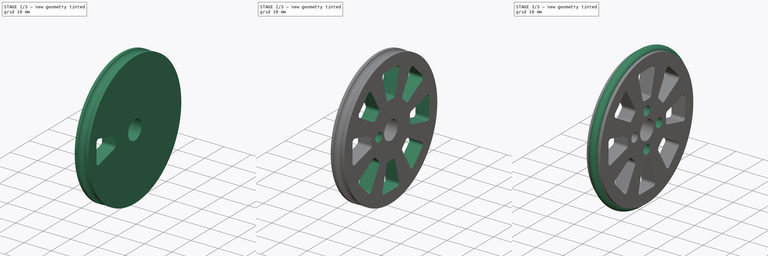
[diagram: build sequence overview — one tinted view per stage of 3, left to right]
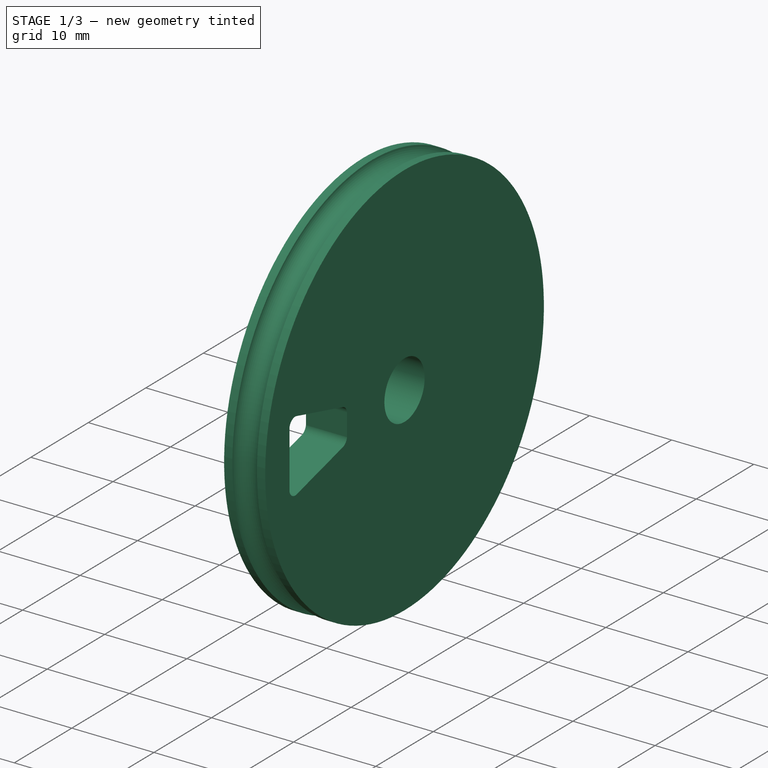
[diagram: stage 1 of 3 — iso view after this stage's code; geometry added in this stage tinted green]
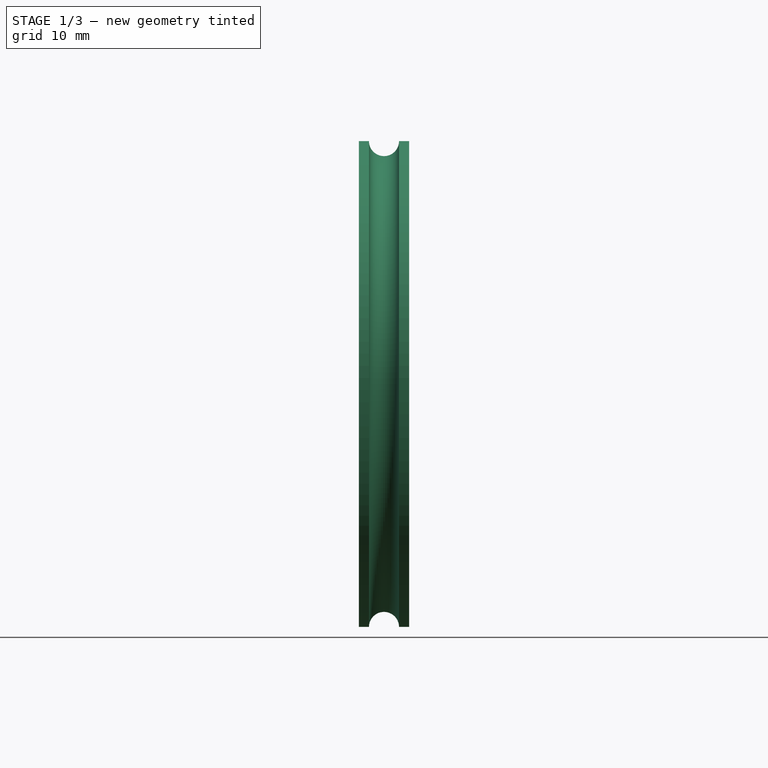
[diagram: stage 1 of 3 — front view after this stage's code; geometry added in this stage tinted green]
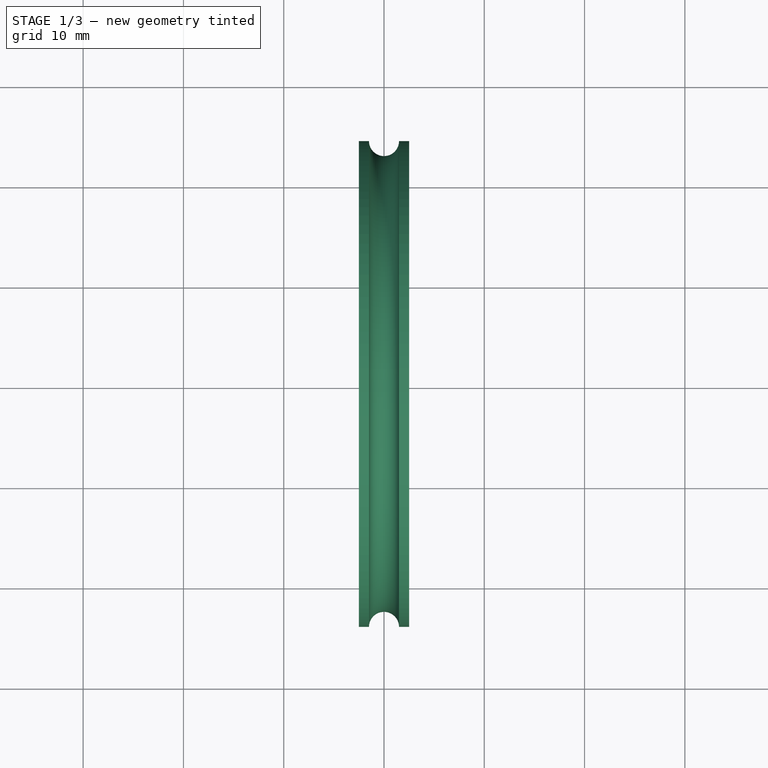
[diagram: stage 1 of 3 — top view after this stage's code; geometry added in this stage tinted green]
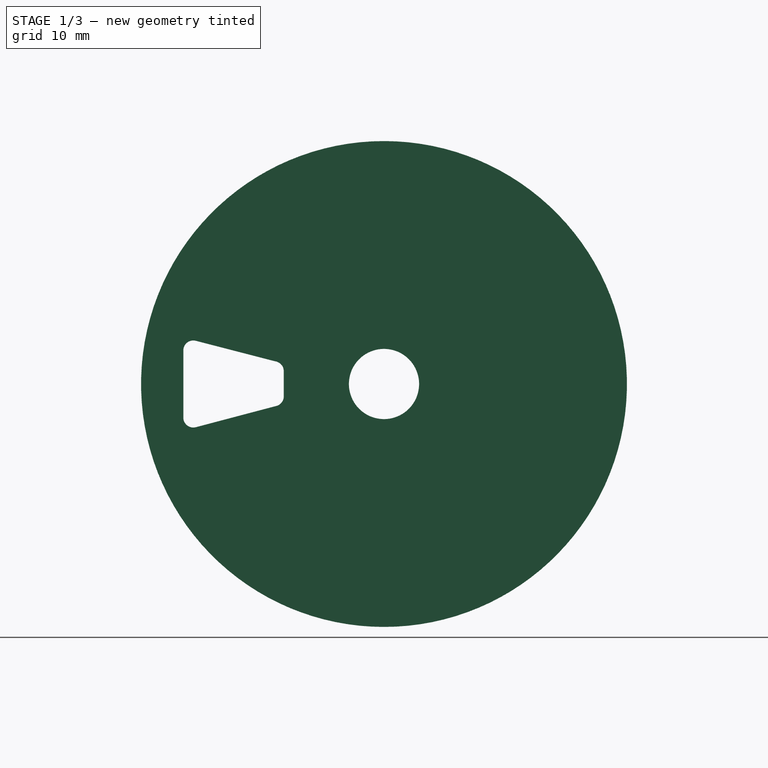
[diagram: stage 1 of 3 — right view after this stage's code; geometry added in this stage tinted green]
FCSTD DOCUMENT  (FreeCAD 0.19R24291 (Git))
Label: Roue_codeuse
License: All rights reserved
LicenseURL: http://en.wikipedia.org/wiki/All_rights_reserved
objects: Sketcher::SketchObject×4, PartDesign::Revolution×2, PartDesign::Body×2, PartDesign::Pocket×2, PartDesign::PolarPattern×2
note: 16 computed .brp shape members not serialized (recipe doc carries the construction recipe); baked Part::Feature solids carry a one-line shape summary decoded from their .brp

FEATURE [Sketcher::SketchObject] Sketch  label="base_roue"
  FullyConstrained = true
  MapMode = 5
  Placement = pos=(0,0,0) rot=(1,0,0;1.5708rad)
  Support = -> [XZ_Plane]
  sketch-geometry (8):
    g0: LineSegment StartX=-2.5 StartY=3.5 StartZ=0 EndX=-2.5 EndY=24.225 EndZ=0
    g1: LineSegment StartX=2.5 StartY=24.225 StartZ=0 EndX=2.5 EndY=3.5 EndZ=0
    g2: LineSegment StartX=2.5 StartY=3.5 StartZ=0 EndX=-2.5 EndY=3.5 EndZ=0
    g3: LineSegment StartX=-2.5 StartY=24.225 StartZ=0 EndX=-1.5 EndY=24.225 EndZ=0
    g4: LineSegment StartX=2.5 StartY=24.225 StartZ=0 EndX=1.5 EndY=24.225 EndZ=0
    g5: ArcOfCircle CenterX=0 CenterY=24.225 CenterZ=0 NormalX=0 NormalY=0 NormalZ=1 AngleXU=0 Radius=1.5 StartAngle=3.14159 EndAngle=6.28319
    g6: LineSegment StartX=-1.5 StartY=24.225 StartZ=0 EndX=1.5 EndY=24.225 EndZ=0
    g7: GeomPoint X=0 Y=3.5 Z=0
  constraints (21):
    c: Vertical(g0)
    c: Vertical(g1)
    c: Coincident(g1,g2)
    c: Coincident(g2,g0)
    c: Horizontal(g2)
    c: DistanceY(g-1,g1) = 24.225
    c: DistanceY(g-1,g1) = 3.5
    c: DistanceX(g0,g1) = 5
    c: Coincident(g3,g0)
    c: Horizontal(g3)
    c: Coincident(g4,g1)
    c: Coincident(g5,g3)
    c: Coincident(g5,g4)
    c: Radius(g5) = 1.5
    c: Equal(g3,g4)
    c: Tangent(g4,g3)
    c: Coincident(g6,g3)
    c: Coincident(g6,g4)
    c: DistanceX(g6,g6) = 3
    c: Symmetric(g1,g0,g7)
    c: Vertical(g7,g-1)
FEATURE [PartDesign::Revolution] Revolution  label="base_roue001"
  Angle = 360
  Axis = (1,0,0)
  Base = (0,0,0)
  Placement = pos=(0,0,0) rot=(1,0,0;1.5708rad)
  Profile = -> Sketch
  ReferenceAxis = -> Sketch [H_Axis]
FEATURE [PartDesign::Body] Body001  label="Joint"
  Group = -> [Sketch001,Revolution001]
  Origin = -> Origin001
  Tip = -> Revolution001
FEATURE [Sketcher::SketchObject] Sketch002
  FullyConstrained = false
  MapMode = 5
  Placement = pos=(-2.5,0,0) rot=(0.707107,0,-0.707107;3.14159rad)
  Support = -> [Revolution]
  sketch-geometry (9):
    g0: ArcOfCircle CenterX=-3.3399 CenterY=19.0129 CenterZ=0 NormalX=0 NormalY=0 NormalZ=1 AngleXU=0 Radius=1 StartAngle=1.73159 EndAngle=3.42772
    g1: LineSegment StartX=-2.26347 StartY=10.8596 StartZ=0 EndX=-4.29924 EndY=18.7307 EndZ=0
    g2: ArcOfCircle CenterX=3.3399 CenterY=19.0129 CenterZ=0 NormalX=0 NormalY=0 NormalZ=1 AngleXU=0 Radius=1 StartAngle=5.99706 EndAngle=7.69319
    g3: LineSegment StartX=-3.5 StartY=20 StartZ=0 EndX=3.5 EndY=20 EndZ=0
    g4: ArcOfCircle CenterX=-1.27278 CenterY=10.9957 CenterZ=0 NormalX=0 NormalY=0 NormalZ=1 AngleXU=0 Radius=1 StartAngle=3.27818 EndAngle=4.61985
    g5: ArcOfCircle CenterX=1.22211 CenterY=10.9897 CenterZ=0 NormalX=0 NormalY=0 NormalZ=1 AngleXU=0 Radius=1 StartAngle=4.85596 EndAngle=6.06836
    g6: LineSegment StartX=-1.36519 StartY=10 StartZ=0 EndX=1.36519 EndY=10 EndZ=0
    g7: LineSegment StartX=2.19912 StartY=10.7765 StartZ=0 EndX=4.29924 EndY=18.7307 EndZ=0
    g8: LineSegment StartX=-4.29924 StartY=18.7307 StartZ=0 EndX=4.29924 EndY=18.7307 EndZ=0
  constraints (22):
    c: Radius(g0) = 1
    c: Coincident(g1,g0)
    c: Radius(g2) = 1
    c: Coincident(g3,g0)
    c: Coincident(g3,g2)
    c: Coincident(g4,g1)
    c: Radius(g4) = 1
    c: Radius(g5) = 1
    c: Coincident(g6,g4)
    c: Coincident(g6,g5)
    c: Coincident(g7,g5)
    c: Coincident(g7,g2)
    c: Symmetric(g0,g2,g-2)
    c: Symmetric(g5,g4,g-2)
    c: DistanceY(g5,g2) = 10
    c: DistanceY(g-1,g5) = 10
    c: DistanceX(g0,g2) = 7
    c: Distance(g0,g0) = 1.5
    c: Coincident(g8,g0)
    c: Coincident(g8,g2)
    c: Horizontal(g8)
    c: Distance(g2,g2) = 1.5
FEATURE [PartDesign::Pocket] Pocket  label="trou_roue"
  BaseFeature = -> Revolution
  Length = 5
  Length2 = 100
  Placement = pos=(0,0,0) rot=(1,0,0;1.5708rad)
  Profile = -> Sketch002
  Type = 1
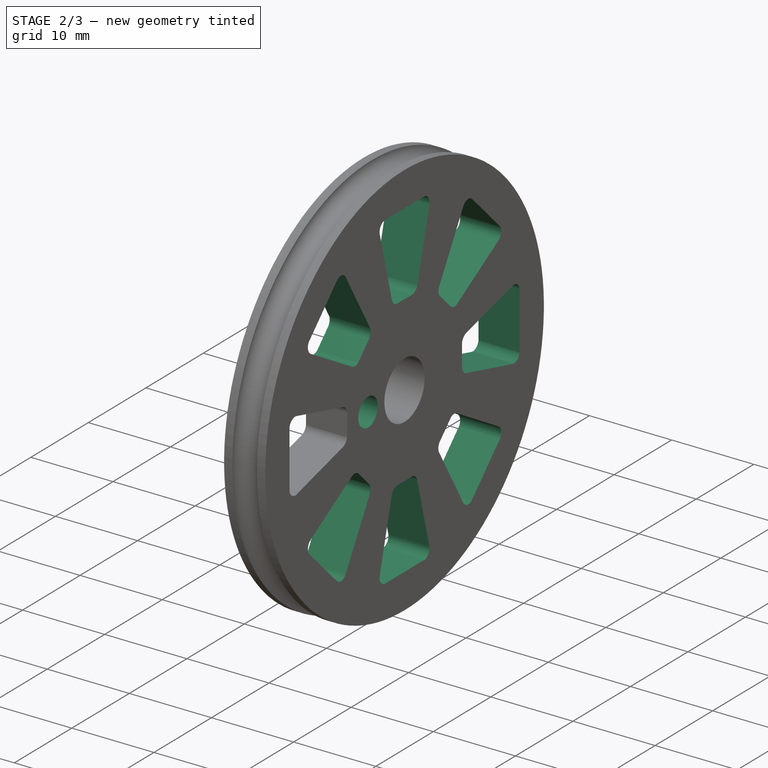
[diagram: stage 2 of 3 — iso view after this stage's code; geometry added in this stage tinted green]
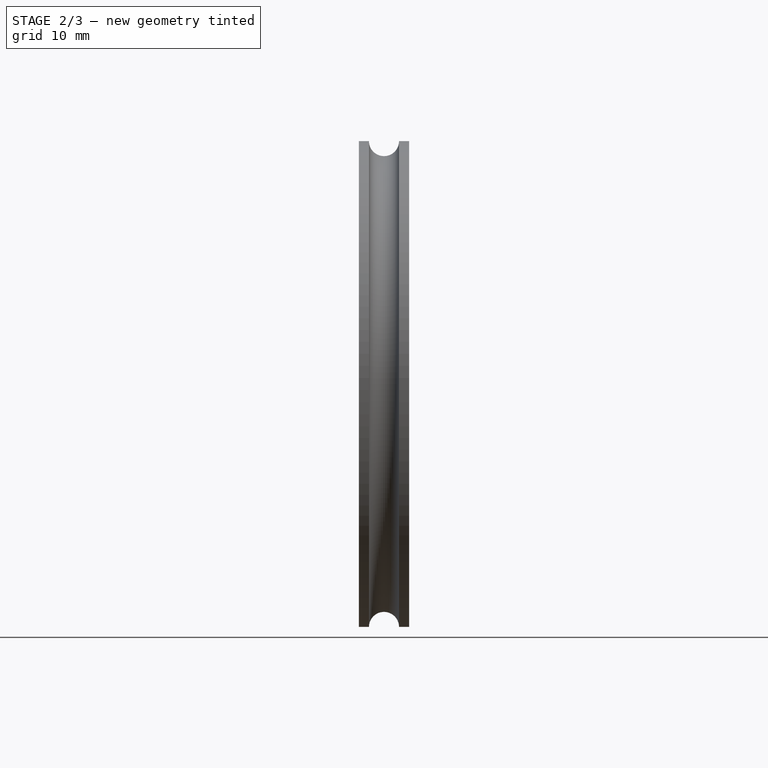
[diagram: stage 2 of 3 — front view after this stage's code; geometry added in this stage tinted green]
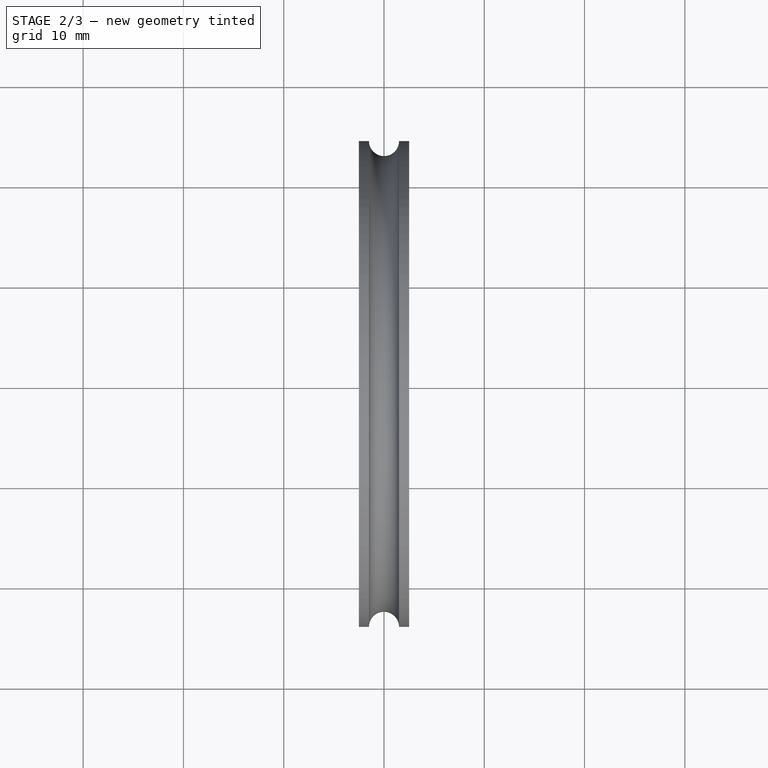
[diagram: stage 2 of 3 — top view after this stage's code; geometry added in this stage tinted green]
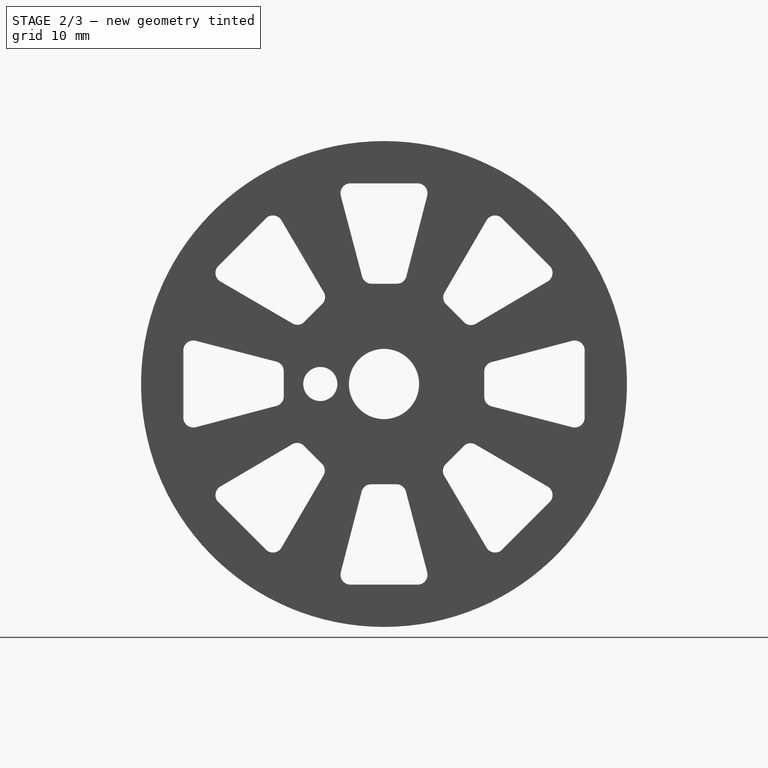
[diagram: stage 2 of 3 — right view after this stage's code; geometry added in this stage tinted green]
FEATURE [PartDesign::PolarPattern] PolarPattern  label="troue_roue_pattern"
  Angle = 360
  Axis = -> Sketch002 [N_Axis]
  BaseFeature = -> Pocket
  Occurrences = 8
  Originals = -> [Pocket]
  Placement = pos=(0,0,0) rot=(1,0,0;1.5708rad)
FEATURE [Sketcher::SketchObject] Sketch003
  FullyConstrained = true
  MapMode = 5
  Placement = pos=(-2.5,0,0) rot=(0.707107,0,-0.707107;3.14159rad)
  Support = -> [PolarPattern]
  sketch-geometry (1):
    g0: Circle CenterX=0 CenterY=6.35 CenterZ=0 NormalX=0 NormalY=0 NormalZ=1 AngleXU=0 Radius=1.7
  constraints (3):
    c: PointOnObject(g0,g-2)
    c: Radius(g0) = 1.7
    c: DistanceY(g-1,g0) = 6.35
FEATURE [PartDesign::Pocket] Pocket001  label="trou_m3"
  BaseFeature = -> PolarPattern
  Length = 5
  Length2 = 100
  Placement = pos=(0,0,0) rot=(1,0,0;1.5708rad)
  Profile = -> Sketch003
  Type = 1
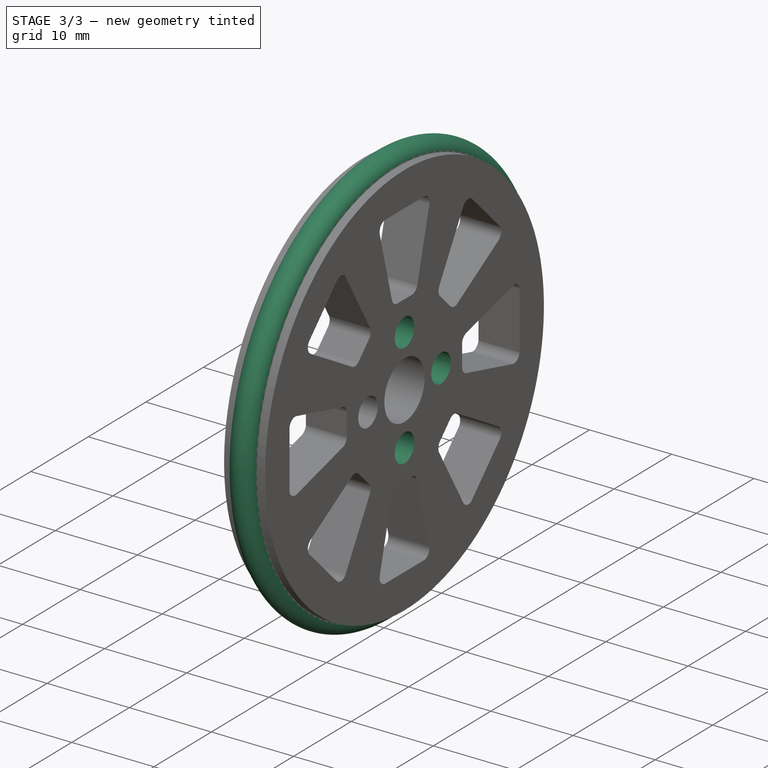
[diagram: stage 3 of 3 — iso view after this stage's code; geometry added in this stage tinted green]
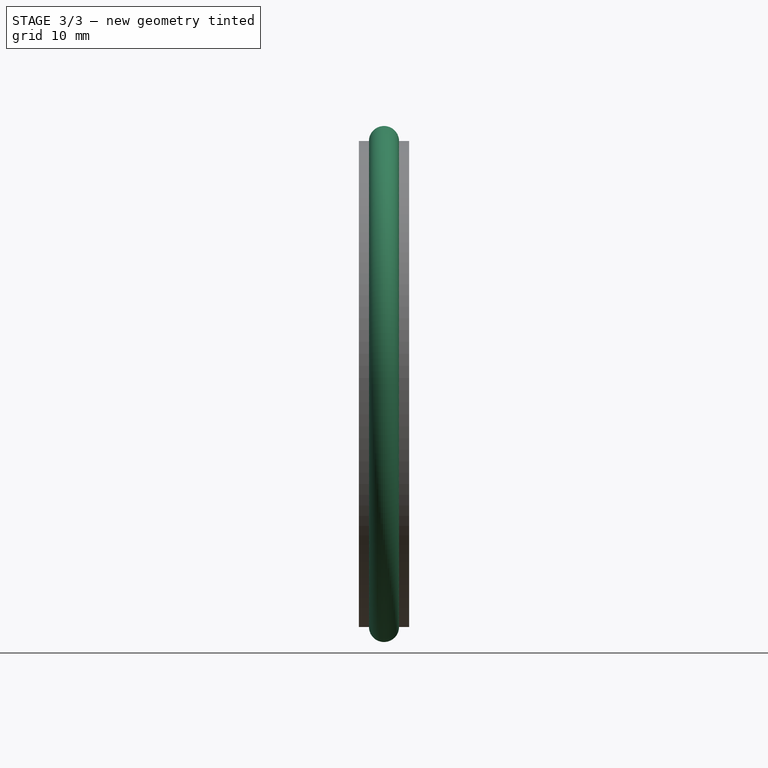
[diagram: stage 3 of 3 — front view after this stage's code; geometry added in this stage tinted green]
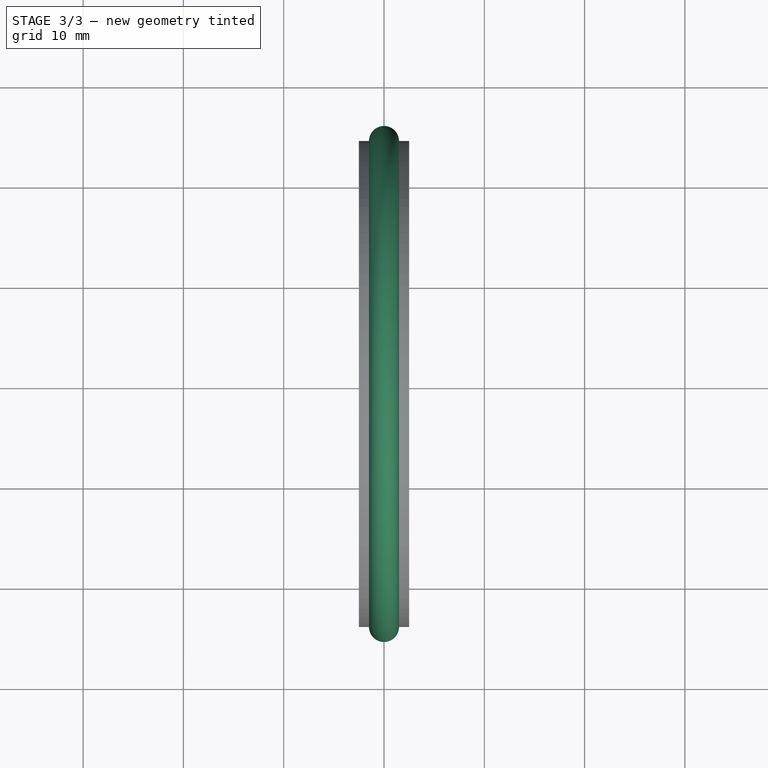
[diagram: stage 3 of 3 — top view after this stage's code; geometry added in this stage tinted green]
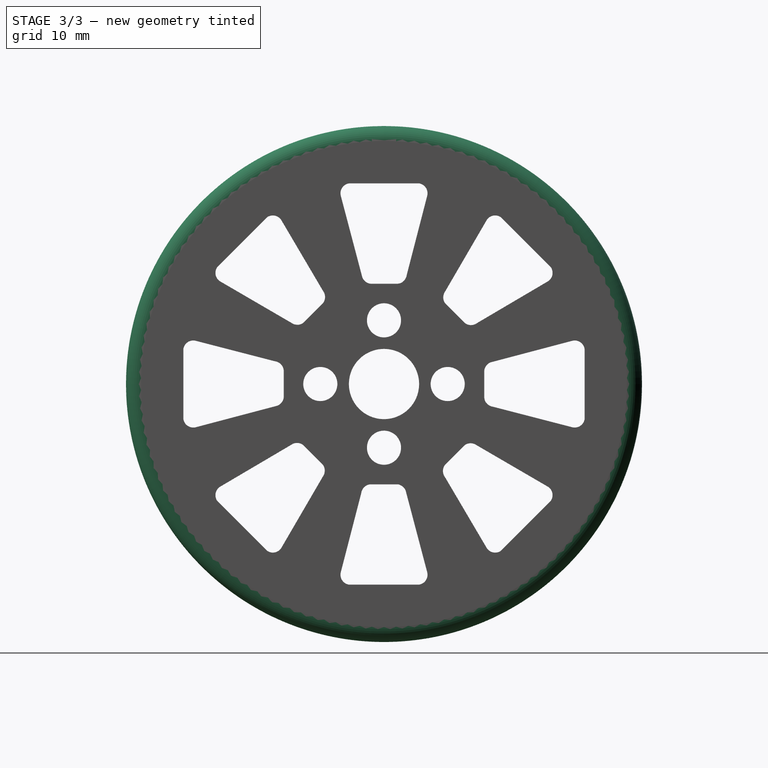
[diagram: stage 3 of 3 — right view after this stage's code; geometry added in this stage tinted green]
FEATURE [Sketcher::SketchObject] Sketch001
  FullyConstrained = true
  MapMode = 5
  Placement = pos=(0,0,0) rot=(1,0,0;1.5708rad)
  Support = -> [XZ_Plane001]
  sketch-geometry (1):
    g0: Circle CenterX=0 CenterY=24.225 CenterZ=0 NormalX=0 NormalY=0 NormalZ=1 AngleXU=0 Radius=1.5
  constraints (3):
    c: PointOnObject(g0,g-2)
    c: Radius(g0) = 1.5
    c: DistanceY(g-1,g0) = 24.225
FEATURE [PartDesign::Revolution] Revolution001
  Angle = 360
  Axis = (1,0,0)
  Base = (0,0,0)
  Placement = pos=(0,0,0) rot=(1,0,0;1.5708rad)
  Profile = -> Sketch001
  ReferenceAxis = -> Sketch001 [H_Axis]
FEATURE [PartDesign::PolarPattern] PolarPattern001  label="trou_m3_pattern"
  Angle = 360
  Axis = -> Sketch003 [N_Axis]
  BaseFeature = -> Pocket001
  Occurrences = 4
  Originals = -> [Pocket001]
  Placement = pos=(0,0,0) rot=(1,0,0;1.5708rad)
FEATURE [PartDesign::Body] Body  label="Roue"
  Group = -> [Sketch,Revolution,Sketch002,Pocket,PolarPattern,Sketch003,Pocket001,PolarPattern001]
  Origin = -> Origin
  Tip = -> PolarPattern001
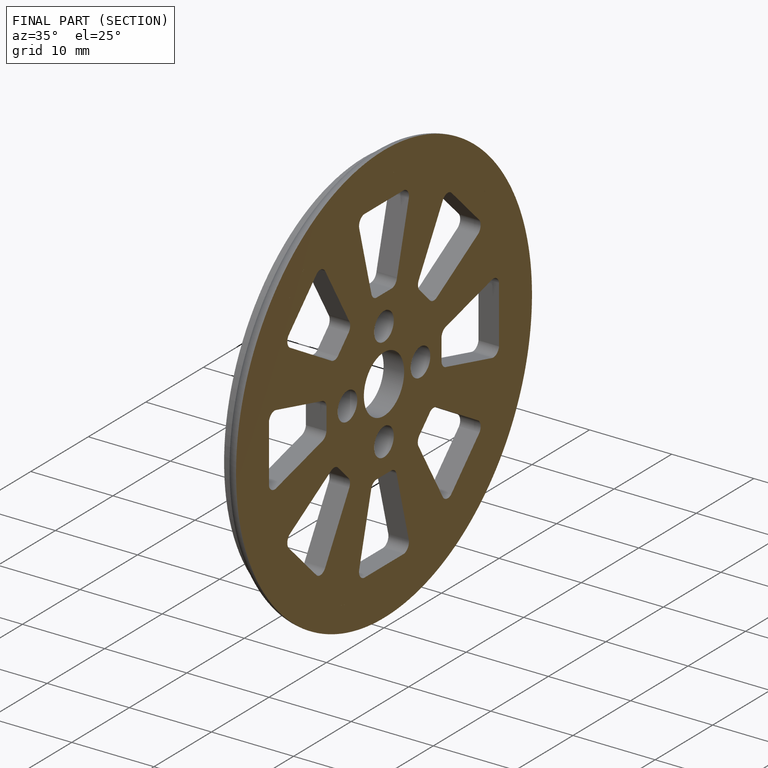
[diagram: finished part — half-section view (interior)]
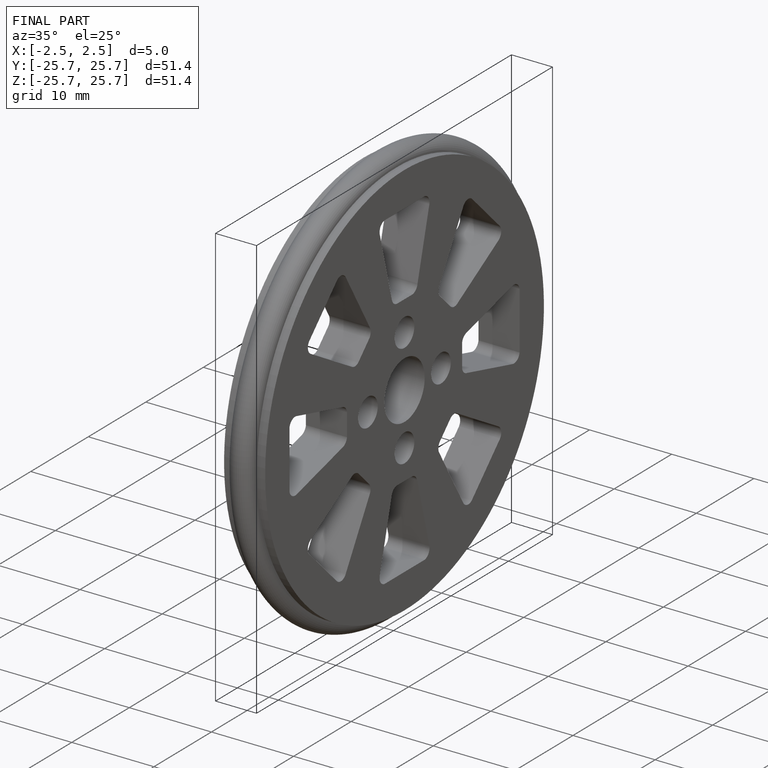
[diagram: finished part — iso view with bounding-box wireframe]
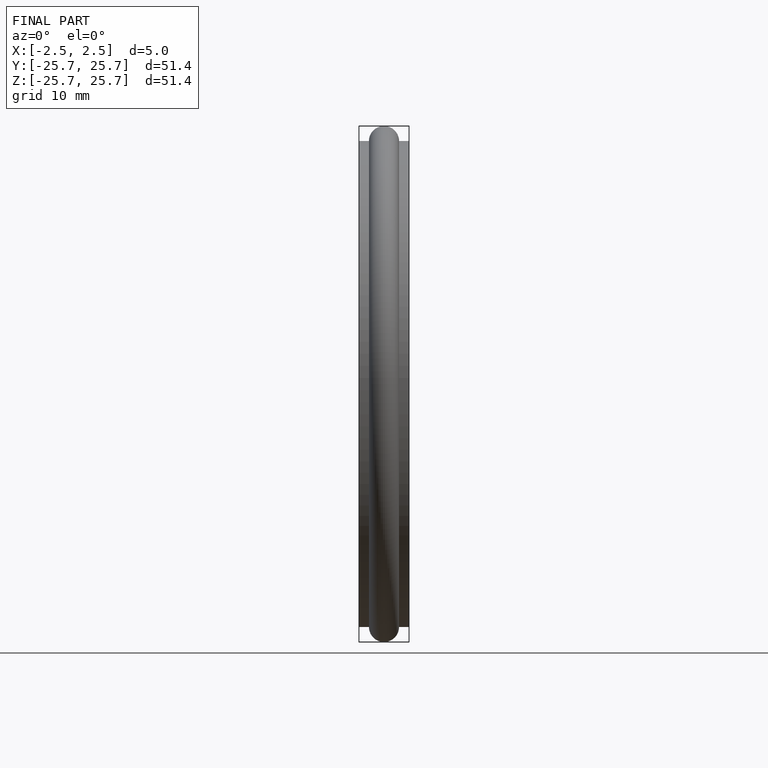
[diagram: finished part — front view with bounding-box wireframe]
